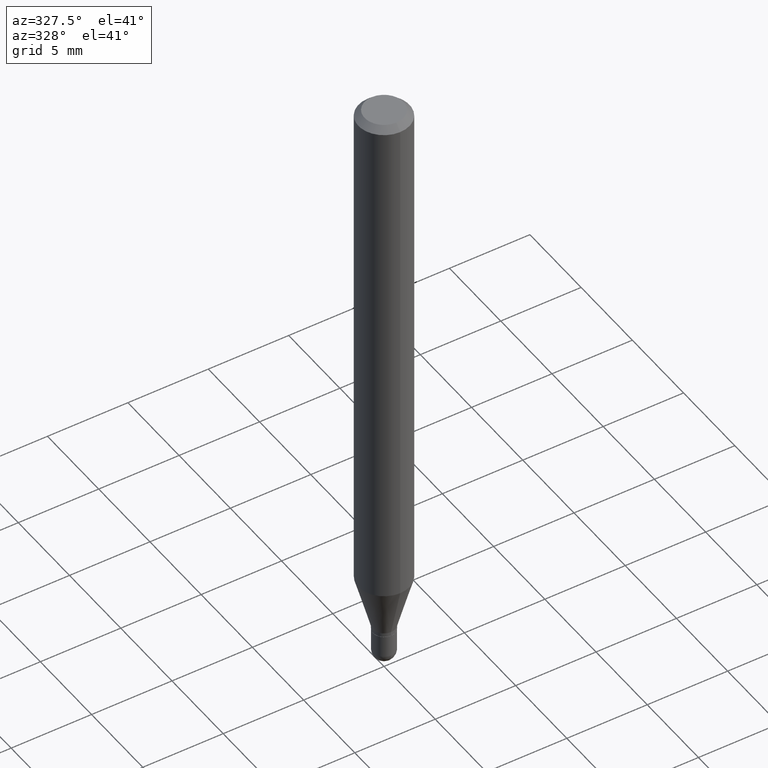
[diagram: clean part render]
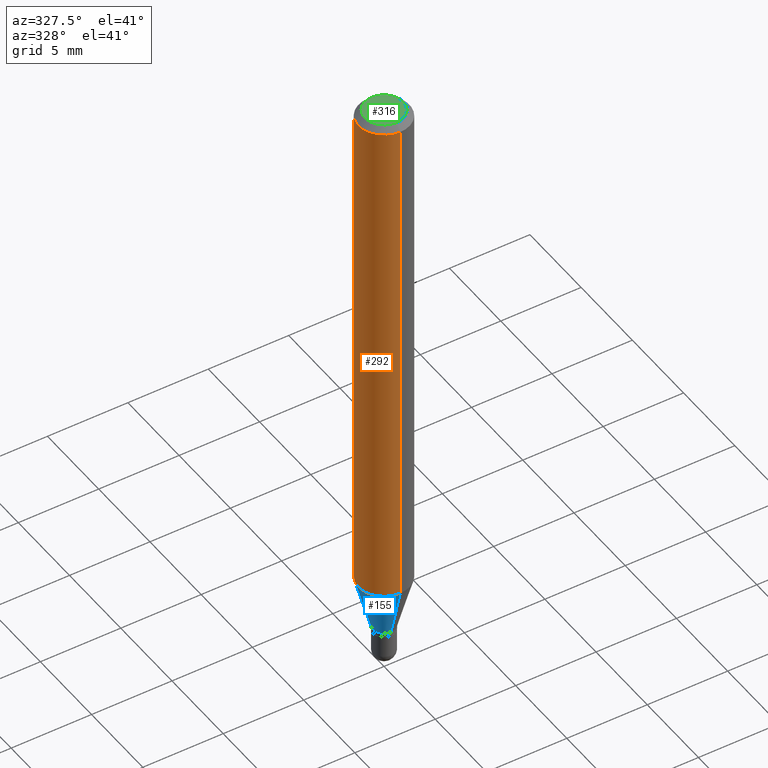
[diagram: same view with three faces highlighted in distinct colors, each labeled with its STEP entity id]
A machine part, auxiliary view with three faces highlighted in distinct colors.
Their STEP definitions:

[orange] entity #292 — the highlighted cylindrical surface (edge-blend (fillet) strip) has radius 1.5875 mm, axis along (-0, 0, 1).
#16 = DIRECTION ( 'NONE',  ( -6.982962677686265922E-15, -1.000000000000000000, 4.370956789862821150E-15 ) ) ;
#19 = EDGE_CURVE ( 'NONE', #490, #131, #100, .T. ) ;
#27 = CARTESIAN_POINT ( 'NONE',  ( -4.364351673553912750E-16, -0.06250000000000005551, -0.01500000000000011047 ) ) ;
#48 = CARTESIAN_POINT ( 'NONE',  ( -4.364351673553605587E-16, -0.06250000000000449640, -1.276512196331305304 ) ) ;
#58 = ORIENTED_EDGE ( 'NONE', *, *, #19, .F. ) ;
#62 = CARTESIAN_POINT ( 'NONE',  ( 4.440892098500625669E-16, 0.06250000000000000000, -2.182174891726189254E-16 ) ) ;
#68 = FACE_OUTER_BOUND ( 'NONE', #217, .T. ) ;
#75 = AXIS2_PLACEMENT_3D ( 'NONE', #364, #126, #16 ) ;
#82 = LINE ( 'NONE', #319, #346 ) ;
#97 = CARTESIAN_POINT ( 'NONE',  ( 0.000000000000000000, 0.000000000000000000, 0.000000000000000000 ) ) ;
#100 = LINE ( 'NONE', #62, #279 ) ;
#126 = DIRECTION ( 'NONE',  ( -2.445469862065824792E-29, 3.491479826761902806E-15, 1.000000000000000000 ) ) ;
#131 = VERTEX_POINT ( 'NONE', #351 ) ;
#146 = CIRCLE ( 'NONE', #75, 0.06250000000000000000 ) ;
#151 = AXIS2_PLACEMENT_3D ( 'NONE', #190, #347, #186 ) ;
#152 = EDGE_CURVE ( 'NONE', #416, #386, #82, .T. ) ;
#180 = DIRECTION ( 'NONE',  ( -6.982962677686265922E-15, -1.000000000000000000, 3.491479826761902806E-15 ) ) ;
#186 = DIRECTION ( 'NONE',  ( -6.982962677686265922E-15, -1.000000000000000000, 3.483106191921935554E-15 ) ) ;
#190 = CARTESIAN_POINT ( 'NONE',  ( 3.668204793098817781E-31, -5.237219740142969111E-17, -0.01500000000000032904 ) ) ;
#193 = ORIENTED_EDGE ( 'NONE', *, *, #337, .T. ) ;
#217 = EDGE_LOOP ( 'NONE', ( #58, #193, #461, #512 ) ) ;
#223 = DIRECTION ( 'NONE',  ( -2.445469862065824792E-29, 3.491479826761902806E-15, 1.000000000000000000 ) ) ;
#257 = AXIS2_PLACEMENT_3D ( 'NONE', #97, #423, #180 ) ;
#262 = EDGE_CURVE ( 'NONE', #131, #386, #365, .T. ) ;
#279 = VECTOR ( 'NONE', #223, 39.37007874015748143 ) ;
#292 = ADVANCED_FACE ( 'NONE', ( #68 ), #378, .T. ) ;
#319 = CARTESIAN_POINT ( 'NONE',  ( -4.364351673553916201E-16, -0.06250000000000000000, 2.182174891726189254E-16 ) ) ;
#324 = DIRECTION ( 'NONE',  ( -2.445469862065824792E-29, 3.491479826761902806E-15, 1.000000000000000000 ) ) ;
#337 = EDGE_CURVE ( 'NONE', #490, #416, #146, .T. ) ;
#346 = VECTOR ( 'NONE', #324, 39.37007874015748143 ) ;
#347 = DIRECTION ( 'NONE',  ( -2.445469862065824792E-29, 3.491479826761902806E-15, 1.000000000000000000 ) ) ;
#351 = CARTESIAN_POINT ( 'NONE',  ( 4.440892098500940720E-16, 0.06249999999999995143, -0.01500000000000054588 ) ) ;
#364 = CARTESIAN_POINT ( 'NONE',  ( 3.121672104687660852E-29, -4.456916582106282753E-15, -1.276512196331305526 ) ) ;
#365 = CIRCLE ( 'NONE', #151, 0.06250000000000000000 ) ;
#378 = CYLINDRICAL_SURFACE ( 'NONE', #257, 0.06250000000000000000 ) ;
#386 = VERTEX_POINT ( 'NONE', #27 ) ;
#416 = VERTEX_POINT ( 'NONE', #48 ) ;
#423 = DIRECTION ( 'NONE',  ( -2.445469862065824792E-29, 3.491479826761902806E-15, 1.000000000000000000 ) ) ;
#461 = ORIENTED_EDGE ( 'NONE', *, *, #152, .T. ) ;
#476 = CARTESIAN_POINT ( 'NONE',  ( 4.440892098500935790E-16, 0.06249999999999551747, -1.276512196331305971 ) ) ;
#490 = VERTEX_POINT ( 'NONE', #476 ) ;
#512 = ORIENTED_EDGE ( 'NONE', *, *, #262, .F. ) ;

[blue] entity #155 — the highlighted conical surface has half-angle 15 deg.
#8 = EDGE_CURVE ( 'NONE', #158, #416, #501, .T. ) ;
#14 = AXIS2_PLACEMENT_3D ( 'NONE', #154, #211, #367 ) ;
#16 = DIRECTION ( 'NONE',  ( -6.982962677686265922E-15, -1.000000000000000000, 4.370956789862821150E-15 ) ) ;
#25 = DIRECTION ( 'NONE',  ( 1.839019923739602287E-15, 0.2588190451025252359, 0.9659258262890670910 ) ) ;
#28 = EDGE_CURVE ( 'NONE', #125, #490, #506, .T. ) ;
#30 = VECTOR ( 'NONE', #25, 39.37007874015748143 ) ;
#40 = CARTESIAN_POINT ( 'NONE',  ( 3.179678742526774589E-16, 0.02699999999999500022, -1.409000000000000474 ) ) ;
#48 = CARTESIAN_POINT ( 'NONE',  ( -4.364351673553605587E-16, -0.06250000000000449640, -1.276512196331305304 ) ) ;
#50 = DIRECTION ( 'NONE',  ( -2.445469862065824792E-29, 3.491479826761902806E-15, 1.000000000000000000 ) ) ;
#74 = DIRECTION ( 'NONE',  ( -6.982962677686265922E-15, -1.000000000000000000, 0.000000000000000000 ) ) ;
#75 = AXIS2_PLACEMENT_3D ( 'NONE', #364, #126, #16 ) ;
#102 = VECTOR ( 'NONE', #136, 39.37007874015748854 ) ;
#125 = VERTEX_POINT ( 'NONE', #40 ) ;
#126 = DIRECTION ( 'NONE',  ( -2.445469862065824792E-29, 3.491479826761902806E-15, 1.000000000000000000 ) ) ;
#136 = DIRECTION ( 'NONE',  ( -1.807323732225332111E-15, -0.2588190451025184635, 0.9659258262890689783 ) ) ;
#146 = CIRCLE ( 'NONE', #75, 0.06250000000000000000 ) ;
#154 = CARTESIAN_POINT ( 'NONE',  ( 3.445667035650748496E-29, -4.919495075907522612E-15, -1.409000000000000474 ) ) ;
#155 = ADVANCED_FACE ( 'NONE', ( #447 ), #432, .T. ) ;
#158 = VERTEX_POINT ( 'NONE', #474 ) ;
#169 = ORIENTED_EDGE ( 'NONE', *, *, #271, .T. ) ;
#179 = CARTESIAN_POINT ( 'NONE',  ( -1.885399922974942083E-16, -0.02700000000000484304, -1.409000000000000474 ) ) ;
#189 = CIRCLE ( 'NONE', #399, 0.02699999999999992337 ) ;
#211 = DIRECTION ( 'NONE',  ( -2.445469862065824792E-29, 3.491479826761902806E-15, 1.000000000000000000 ) ) ;
#271 = EDGE_CURVE ( 'NONE', #125, #158, #189, .T. ) ;
#320 = ORIENTED_EDGE ( 'NONE', *, *, #8, .T. ) ;
#334 = CARTESIAN_POINT ( 'NONE',  ( 1.918465386552609197E-16, 0.02699999999999500022, -1.409000000000000474 ) ) ;
#337 = EDGE_CURVE ( 'NONE', #490, #416, #146, .T. ) ;
#364 = CARTESIAN_POINT ( 'NONE',  ( 3.121672104687660852E-29, -4.456916582106282753E-15, -1.276512196331305526 ) ) ;
#367 = DIRECTION ( 'NONE',  ( -6.982962677686265922E-15, -1.000000000000000000, 0.000000000000000000 ) ) ;
#399 = AXIS2_PLACEMENT_3D ( 'NONE', #401, #50, #74 ) ;
#401 = CARTESIAN_POINT ( 'NONE',  ( 3.445667035650748496E-29, -4.919495075907522612E-15, -1.409000000000000474 ) ) ;
#416 = VERTEX_POINT ( 'NONE', #48 ) ;
#421 = ORIENTED_EDGE ( 'NONE', *, *, #337, .F. ) ;
#432 = CONICAL_SURFACE ( 'NONE', #14, 0.02699999999999992337, 0.2617993877991505736 ) ;
#447 = FACE_OUTER_BOUND ( 'NONE', #460, .T. ) ;
#460 = EDGE_LOOP ( 'NONE', ( #504, #169, #320, #421 ) ) ;
#474 = CARTESIAN_POINT ( 'NONE',  ( -1.885399922974942083E-16, -0.02700000000000484304, -1.409000000000000474 ) ) ;
#476 = CARTESIAN_POINT ( 'NONE',  ( 4.440892098500935790E-16, 0.06249999999999551747, -1.276512196331305971 ) ) ;
#490 = VERTEX_POINT ( 'NONE', #476 ) ;
#501 = LINE ( 'NONE', #179, #102 ) ;
#504 = ORIENTED_EDGE ( 'NONE', *, *, #28, .F. ) ;
#506 = LINE ( 'NONE', #334, #30 ) ;

[green] entity #316 — the highlighted planar face has unit normal (0, -0, -1).
#6 = FACE_OUTER_BOUND ( 'NONE', #241, .T. ) ;
#42 = CARTESIAN_POINT ( 'NONE',  ( -3.773273898774340269E-16, -0.04749999999999999362, -1.623017277648283260E-16 ) ) ;
#53 = EDGE_CURVE ( 'NONE', #354, #458, #137, .T. ) ;
#67 = DIRECTION ( 'NONE',  ( -2.445469862065824792E-29, 3.491479826761902806E-15, 1.000000000000000000 ) ) ;
#111 = AXIS2_PLACEMENT_3D ( 'NONE', #342, #174, #431 ) ;
#115 = CARTESIAN_POINT ( 'NONE',  ( 3.316907271900976096E-16, 0.04749999999999999362, -3.299188015391997739E-16 ) ) ;
#134 = DIRECTION ( 'NONE',  ( -6.982962677686266711E-15, -1.000000000000000000, 3.491479826761903200E-15 ) ) ;
#137 = CIRCLE ( 'NONE', #397, 0.04749999999999999362 ) ;
#174 = DIRECTION ( 'NONE',  ( -2.445469862065824792E-29, 3.491479826761902806E-15, 1.000000000000000000 ) ) ;
#241 = EDGE_LOOP ( 'NONE', ( #369, #275 ) ) ;
#275 = ORIENTED_EDGE ( 'NONE', *, *, #297, .T. ) ;
#277 = DIRECTION ( 'NONE',  ( 2.445469862065824792E-29, -3.491479826761902806E-15, -1.000000000000000000 ) ) ;
#289 = AXIS2_PLACEMENT_3D ( 'NONE', #115, #277, #485 ) ;
#297 = EDGE_CURVE ( 'NONE', #458, #354, #341, .T. ) ;
#316 = ADVANCED_FACE ( 'NONE', ( #6 ), #477, .F. ) ;
#341 = CIRCLE ( 'NONE', #111, 0.04749999999999999362 ) ;
#342 = CARTESIAN_POINT ( 'NONE',  ( 8.024736466020592448E-45, -1.145718698922053548E-30, -3.281470195360187004E-16 ) ) ;
#348 = CARTESIAN_POINT ( 'NONE',  ( 3.840629472727447874E-16, 0.04749999999999999362, -4.939923113072090255E-16 ) ) ;
#354 = VERTEX_POINT ( 'NONE', #348 ) ;
#369 = ORIENTED_EDGE ( 'NONE', *, *, #53, .T. ) ;
#397 = AXIS2_PLACEMENT_3D ( 'NONE', #498, #67, #134 ) ;
#431 = DIRECTION ( 'NONE',  ( -6.982962677686266711E-15, -1.000000000000000000, 3.491479826761903200E-15 ) ) ;
#458 = VERTEX_POINT ( 'NONE', #42 ) ;
#477 = PLANE ( 'NONE',  #289 ) ;
#485 = DIRECTION ( 'NONE',  ( 6.982962677686265922E-15, 1.000000000000000000, -3.491479826761902806E-15 ) ) ;
#498 = CARTESIAN_POINT ( 'NONE',  ( 8.024736466020592448E-45, -1.145718698922053548E-30, -3.281470195360187004E-16 ) ) ;